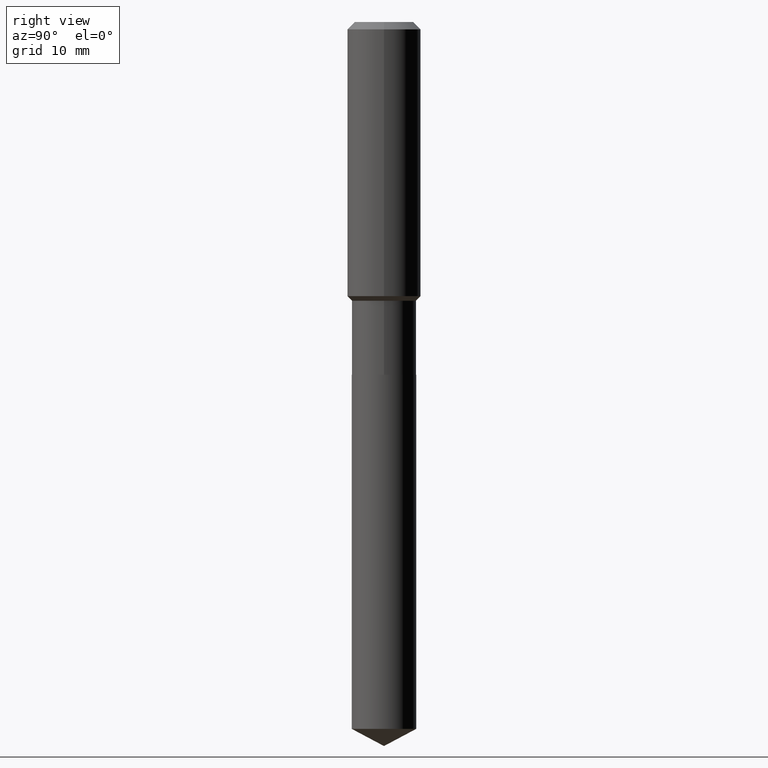
[diagram: clean part render]
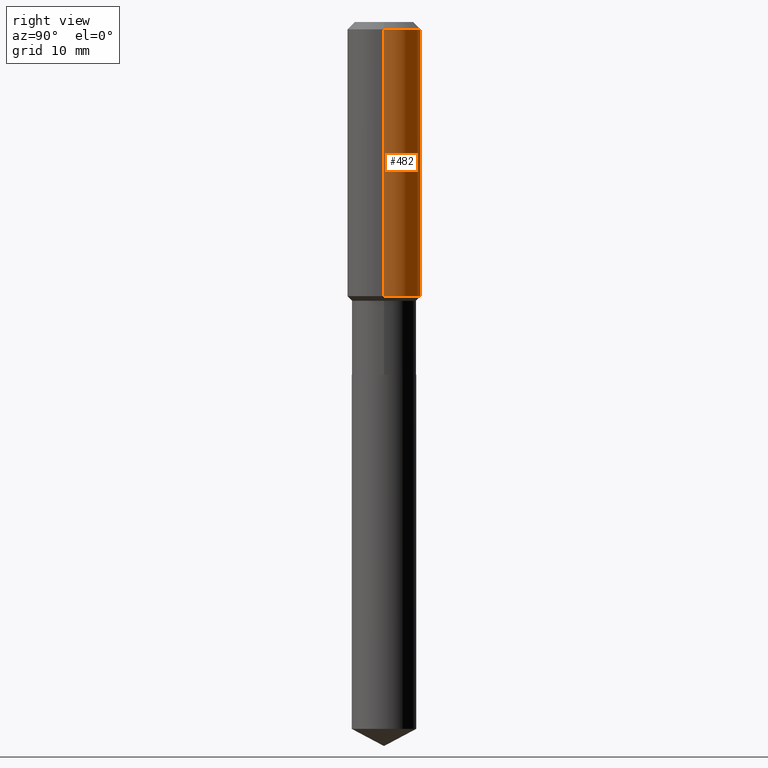
[diagram: same view with one face highlighted and labeled with its STEP entity id]
A machine part, right view. The second image highlights one B-rep face of the part: STEP entity #482.
In plain terms, the highlighted cylindrical surface (partial cylindrical patch) has radius 5.9995 mm, axis along (-0, 0, 1).
Its self-contained STEP definition (entity closure, byte-faithful):
#5 = ORIENTED_EDGE ( 'NONE', *, *, #55, .T. ) ;
#7 = CARTESIAN_POINT ( 'NONE',  ( -0.2362000000000001043, 1.678301941865357380E-15, -1.161852468318209317E-29 ) ) ;
#8 = EDGE_CURVE ( 'NONE', #233, #51, #44, .T. ) ;
#44 = CIRCLE ( 'NONE', #93, 0.2361999999999999933 ) ;
#51 = VERTEX_POINT ( 'NONE', #232 ) ;
#53 = DIRECTION ( 'NONE',  ( -2.445468806185136597E-29, 3.491481338843145583E-15, 1.000000000000000000 ) ) ;
#55 = EDGE_CURVE ( 'NONE', #216, #51, #339, .T. ) ;
#64 = VERTEX_POINT ( 'NONE', #146 ) ;
#92 = CARTESIAN_POINT ( 'NONE',  ( 0.2362000000000001043, -1.649375784469496920E-15, 1.151752954443000508E-29 ) ) ;
#93 = AXIS2_PLACEMENT_3D ( 'NONE', #400, #53, #212 ) ;
#102 = ORIENTED_EDGE ( 'NONE', *, *, #261, .T. ) ;
#113 = AXIS2_PLACEMENT_3D ( 'NONE', #178, #300, #480 ) ;
#121 = VECTOR ( 'NONE', #461, 39.37007874015748143 ) ;
#123 = CARTESIAN_POINT ( 'NONE',  ( 4.301335083199035081E-29, -6.141166526891206646E-15, -1.758899999999999464 ) ) ;
#146 = CARTESIAN_POINT ( 'NONE',  ( 0.2362000000000002153, -7.790542311360703960E-15, -1.758899999999999464 ) ) ;
#165 = EDGE_CURVE ( 'NONE', #64, #233, #365, .T. ) ;
#171 = DIRECTION ( 'NONE',  ( -2.445468806185136597E-29, 3.491481338843145583E-15, 1.000000000000000000 ) ) ;
#172 = ORIENTED_EDGE ( 'NONE', *, *, #165, .F. ) ;
#175 = EDGE_LOOP ( 'NONE', ( #102, #5, #292, #172 ) ) ;
#178 = CARTESIAN_POINT ( 'NONE',  ( 0.000000000000000000, 0.000000000000000000, 0.000000000000000000 ) ) ;
#212 = DIRECTION ( 'NONE',  ( 1.000000000000000000, -6.982962677686266711E-15, 0.000000000000000000 ) ) ;
#216 = VERTEX_POINT ( 'NONE', #355 ) ;
#217 = CYLINDRICAL_SURFACE ( 'NONE', #113, 0.2362000000000001043 ) ;
#232 = CARTESIAN_POINT ( 'NONE',  ( -0.2361999999999999933, -1.474750110803721400E-15, -0.04724000000000028177 ) ) ;
#233 = VERTEX_POINT ( 'NONE', #395 ) ;
#245 = VECTOR ( 'NONE', #423, 39.37007874015748143 ) ;
#261 = EDGE_CURVE ( 'NONE', #64, #216, #462, .T. ) ;
#285 = DIRECTION ( 'NONE',  ( 1.000000000000000000, -6.982962677686266711E-15, 0.000000000000000000 ) ) ;
#292 = ORIENTED_EDGE ( 'NONE', *, *, #8, .F. ) ;
#300 = DIRECTION ( 'NONE',  ( -2.445468806185136597E-29, 3.491481338843145583E-15, 1.000000000000000000 ) ) ;
#339 = LINE ( 'NONE', #7, #245 ) ;
#355 = CARTESIAN_POINT ( 'NONE',  ( -0.2362000000000002153, -4.462864585025847885E-15, -1.758899999999999464 ) ) ;
#359 = AXIS2_PLACEMENT_3D ( 'NONE', #123, #171, #285 ) ;
#365 = LINE ( 'NONE', #92, #121 ) ;
#395 = CARTESIAN_POINT ( 'NONE',  ( 0.2361999999999999933, -1.814313362916447440E-15, -0.04724000000000028177 ) ) ;
#400 = CARTESIAN_POINT ( 'NONE',  ( 1.155239464041865506E-30, -1.649375784469511859E-16, -0.04724000000000028177 ) ) ;
#423 = DIRECTION ( 'NONE',  ( -2.445468806185136877E-29, 3.491481338843145188E-15, 1.000000000000000000 ) ) ;
#452 = FACE_OUTER_BOUND ( 'NONE', #175, .T. ) ;
#461 = DIRECTION ( 'NONE',  ( -2.445468806185136877E-29, 3.491481338843145188E-15, 1.000000000000000000 ) ) ;
#462 = CIRCLE ( 'NONE', #359, 0.2362000000000002153 ) ;
#480 = DIRECTION ( 'NONE',  ( 1.000000000000000000, -6.982962677686266711E-15, 4.876176775795935793E-29 ) ) ;
#482 = ADVANCED_FACE ( 'NONE', ( #452 ), #217, .T. ) ;